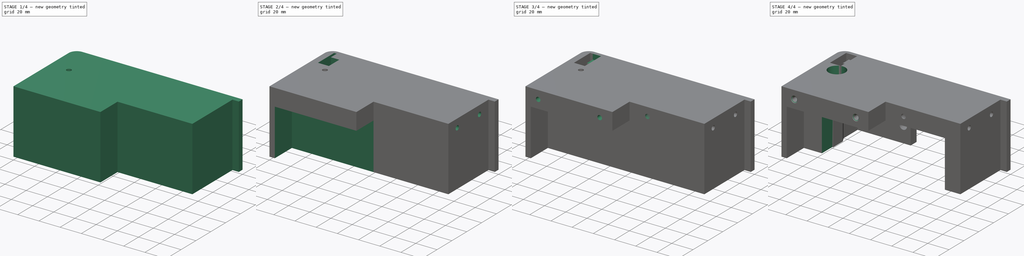
[diagram: build sequence overview — one tinted view per stage of 4, left to right]
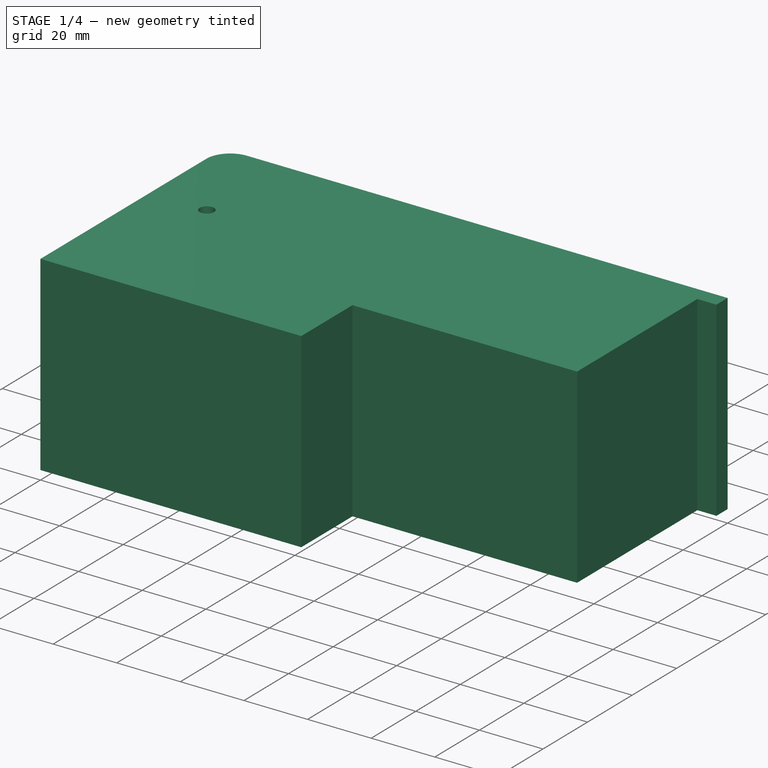
[diagram: stage 1 of 4 — iso view after this stage's code; geometry added in this stage tinted green]
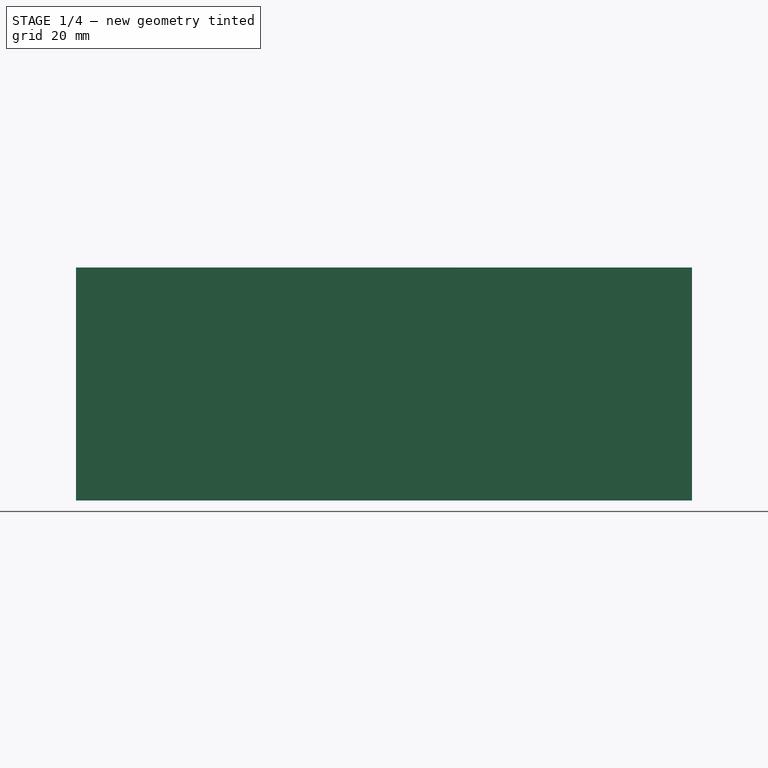
[diagram: stage 1 of 4 — front view after this stage's code; geometry added in this stage tinted green]
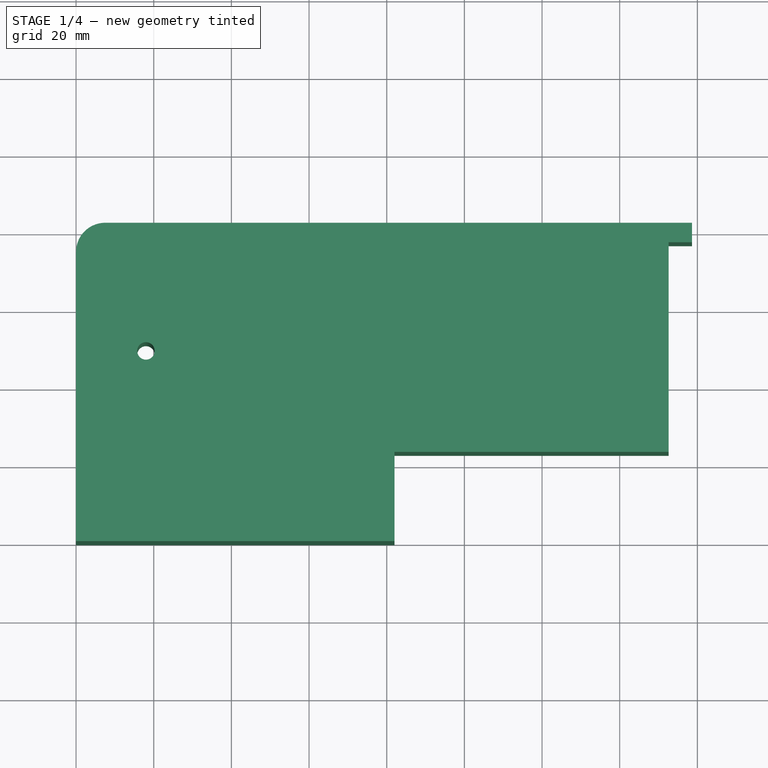
[diagram: stage 1 of 4 — top view after this stage's code; geometry added in this stage tinted green]
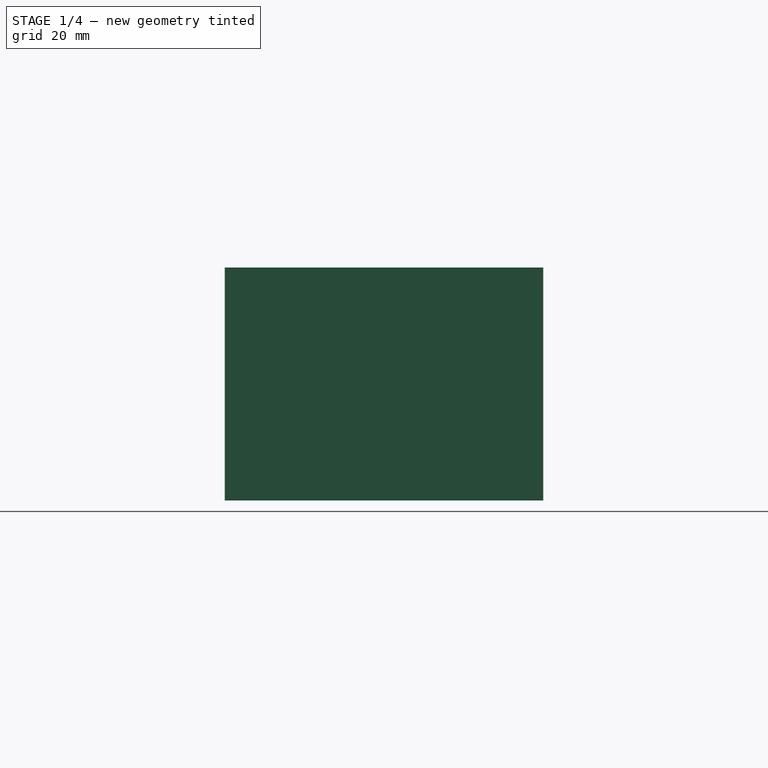
[diagram: stage 1 of 4 — right view after this stage's code; geometry added in this stage tinted green]
FCSTD DOCUMENT  (FreeCAD 0.21R33668 +7 (Git))
Label: speakerbox-L
License: All rights reserved
LicenseURL: http://en.wikipedia.org/wiki/All_rights_reserved
objects: Sketcher::SketchObject×14, PartDesign::Pocket×11, PartDesign::Plane×4, PartDesign::Pad×2, PartDesign::CoordinateSystem×1, PartDesign::Chamfer×1, PartDesign::Body×1, App::Part×1
note: 48 computed .brp shape members not serialized (recipe doc carries the construction recipe); baked Part::Feature solids carry a one-line shape summary decoded from their .brp
EXTERNAL_REF file=planB.FCStd obj=Spreadsheet

FEATURE [Sketcher::SketchObject] Sketch
  FullyConstrained = true
  MapMode = 5
  Support = -> [XY_Plane]
  expr: Constraints[12] = planB#<<data>>.central_h + planB#<<data>>.mungo_d + 2
  sketch-geometry (10):
    g0: LineSegment StartX=0 StartY=0 StartZ=0 EndX=82 EndY=0 EndZ=0
    g1: LineSegment StartX=158.6 StartY=82 StartZ=0 EndX=7.5 EndY=82 EndZ=0
    g2: LineSegment StartX=0 StartY=74.5 StartZ=0 EndX=0 EndY=0 EndZ=0
    g3: LineSegment StartX=82 StartY=0 StartZ=0 EndX=82 EndY=23 EndZ=0
    g4: LineSegment StartX=82 StartY=23 StartZ=0 EndX=152.6 EndY=23 EndZ=0
    g5: LineSegment StartX=152.6 StartY=23 StartZ=0 EndX=152.6 EndY=77 EndZ=0
    g6: LineSegment StartX=152.6 StartY=77 StartZ=0 EndX=158.6 EndY=77 EndZ=0
    g7: LineSegment StartX=158.6 StartY=77 StartZ=0 EndX=158.6 EndY=82 EndZ=0
    g8: ArcOfCircle CenterX=7.5 CenterY=74.5 CenterZ=0 NormalX=0 NormalY=0 NormalZ=1 AngleXU=0 Radius=7.5 StartAngle=1.5708 EndAngle=3.14159
    g9: GeomPoint X=0 Y=82 Z=0
  constraints (27):
    c: Coincident(g0,g3)
    c: Coincident(g7,g1)
    c: Coincident(g2,g0)
    c: Horizontal(g0)
    c: Horizontal(g1)
    c: Vertical(g2)
    c: Coincident(g0,g-1)
    c: Coincident(g3,g4)
    c: Vertical(g3)
    c: Coincident(g4,g5)
    c: Horizontal(g4)
    c: Distance(g3) = 23
    c: Distance(g0) = 82
    c: DistanceX(g4) = 152.6
    c: Coincident(g5,g6)
    c: Vertical(g5)
    c: Coincident(g6,g7)
    c: Vertical(g7)
    c: Horizontal(g6)
    c: Distance(g6) = 6
    c: Distance(g5) = 54
    c: Distance(g7) = 5
    c: PointOnObject(g9,g1)
    c: PointOnObject(g9,g2)
    c: Tangent(g1,g8) = -1.5708
    c: Tangent(g2,g8) = -1.5708
    c: Diameter(g8) = 15
FEATURE [PartDesign::Pad] Pad
  Direction = (0,0,1)
  Length = 60
  Length2 = 10
  Profile = -> Sketch
  ReferenceAxis = -> Sketch [N_Axis]
  Type = 0
  expr: Length = planB#<<data>>.speaker_w
FEATURE [PartDesign::Plane] DatumPlane
  AttachmentOffset = pos=(0,0,5) rot=(0,0,1;0rad)
  Length = 60
  MapMode = 2
  Placement = pos=(0,0,5) rot=(0,0,1;0rad)
  ResizeMode = 0
  Support = -> [XY_Plane]
  Width = 60
  expr: .AttachmentOffset.Base.z = planB#<<data>>.base_t
FEATURE [Sketcher::SketchObject] Sketch001
  FullyConstrained = false
  MapMode = 5
  Support = -> [XY_Plane001]
  expr: Constraints[10] = planB#<<data>>.base_t
  sketch-geometry (26):
    g0: LineSegment StartX=7.90621 StartY=137.395 StartZ=0 EndX=153.6 EndY=137.395 EndZ=0
    g1: LineSegment StartX=147.6 StartY=28 StartZ=0 EndX=77 EndY=28 EndZ=0
    g2: LineSegment StartX=77 StartY=28 StartZ=0 EndX=77 EndY=5 EndZ=0
    g3: LineSegment StartX=77 StartY=5 StartZ=0 EndX=22.8287 EndY=5 EndZ=0
    g4: LineSegment StartX=153.6 StartY=137.395 StartZ=0 EndX=153.6 EndY=92 EndZ=0
    g5: LineSegment StartX=153.6 StartY=92 StartZ=0 EndX=143.6 EndY=92 EndZ=0
    g6: LineSegment StartX=7.90621 StartY=92 StartZ=0 EndX=7.90621 EndY=137.395 EndZ=0
    g7: LineSegment StartX=20 StartY=92 StartZ=0 EndX=7.90621 EndY=92 EndZ=0
    g8: LineSegment StartX=22.8287 StartY=50 StartZ=0 EndX=20 EndY=55 EndZ=0
    g9: LineSegment StartX=147.6 StartY=82.6874 StartZ=0 EndX=147.6 EndY=28 EndZ=0
    g10: LineSegment StartX=143.6 StartY=92 StartZ=0 EndX=143.6 EndY=85 EndZ=0
    g11: LineSegment StartX=143.6 StartY=85 StartZ=0 EndX=147.6 EndY=82.6874 EndZ=0
    g12: LineSegment StartX=22.8287 StartY=5 StartZ=0 EndX=22.8287 EndY=28 EndZ=0
    g13: LineSegment StartX=22.8287 StartY=28 StartZ=0 EndX=22.8287 EndY=50 EndZ=0
    g14: LineSegment StartX=22.8287 StartY=28 StartZ=0 EndX=102.6 EndY=28 EndZ=0
    g15: LineSegment StartX=102.6 StartY=28 StartZ=0 EndX=107.6 EndY=28 EndZ=0
    g16: LineSegment StartX=107.6 StartY=28 StartZ=0 EndX=77 EndY=28 EndZ=0
    g17: LineSegment StartX=102.6 StartY=28 StartZ=0 EndX=102.6 EndY=92 EndZ=0
    g18: LineSegment StartX=102.6 StartY=92 StartZ=0 EndX=107.6 EndY=92 EndZ=0
    g19: LineSegment StartX=107.6 StartY=92 StartZ=0 EndX=107.6 EndY=28 EndZ=0
    g20: Circle CenterX=18 CenterY=49 CenterZ=0 NormalX=0 NormalY=0 NormalZ=1 AngleXU=0 Radius=3
    g21: LineSegment StartX=20 StartY=55 StartZ=0 EndX=20 EndY=74 EndZ=0
    g22: LineSegment StartX=20 StartY=74 StartZ=0 EndX=20 EndY=92 EndZ=0
    g23: LineSegment StartX=20 StartY=74 StartZ=0 EndX=70 EndY=74 EndZ=0
    g24: LineSegment StartX=70 StartY=74 StartZ=0 EndX=70 EndY=92 EndZ=0
    g25: LineSegment StartX=70 StartY=92 StartZ=0 EndX=20 EndY=92 EndZ=0
  constraints (70):
    c: Coincident(g6,g0)
    c: Horizontal(g0)
    c: Coincident(g0,g4)
    c: Coincident(g9,g1)
    c: Horizontal(g1)
    c: Coincident(g1,g2)
    c: Vertical(g2)
    c: Coincident(g2,g3)
    c: Coincident(g3,g12)
    c: Horizontal(g3)
    c: DistanceY(g12) = 5
    c: DistanceX(g2) = 77
    c: DistanceX(g9) = 147.6
    c: Coincident(g4,g5)
    c: Vertical(g4)
    c: Coincident(g5,g10)
    c: Horizontal(g5)
    c: Distance(g2) = 23
    c: Coincident(g7,g6)
    c: Vertical(g6)
    c: Coincident(g22,g7)
    c: Coincident(g13,g8)
    c: Horizontal(g7)
    c: PointOnObject(g7,g5)
    c: Distance(g13,g7) = 42
    c: Coincident(g8,g21)
    c: Coincident(g11,g9)
    c: Vertical(g9)
    c: Distance(g11,g4) = 6
    c: Distance(g1,g5) = 64
    c: Distance(g5) = 10
    c: Coincident(g10,g11)
    c: Vertical(g10)
    c: Distance(g10) = 7
    c: Coincident(g12,g13)
    c: Vertical(g12)
    c: Vertical(g13)
    c: Coincident(g14,g12)
    c: Coincident(g16,g1)
    c: Coincident(g14,g15)
    c: Horizontal(g14)
    c: Coincident(g15,g16)
    c: Horizontal(g15)
    c: Horizontal(g16)
    c: Coincident(g14,g17)
    c: Vertical(g17)
    c: Coincident(g17,g18)
    c: Horizontal(g18)
    c: Coincident(g18,g19)
    c: Coincident(g19,g15)
    c: Vertical(g19)
    c: PointOnObject(g17,g7)
    c: Distance(g18) = 5
    c: Distance(g18,g9) = 40
    c: DistanceX(g20) = 18
    c: DistanceY(g20) = 49
    c: Diameter(g20) = 6
    c: Coincident(g21,g22)
    c: Distance(g21,g22) = 37
    c: Vertical(g21)
    c: Vertical(g22)
    c: Coincident(g21,g23)
    c: Horizontal(g23)
    c: Coincident(g23,g24)
    c: Vertical(g24)
    c: Coincident(g24,g25)
    c: Coincident(g25,g7)
    c: Horizontal(g25)
    c: DistanceY(g24,g24) = 18
    c: DistanceX(g24) = 70
FEATURE [PartDesign::Pocket] Pocket  label="hollow out"
  BaseFeature = -> Pad
  Direction = (0,0,-1)
  Length = 110
  Length2 = 5
  Midplane = true
  Profile = -> Sketch001
  ReferenceAxis = -> Sketch001 [N_Axis]
  Type = 0
  expr: Length = 2 * (planB#<<data>>.speaker_w - planB#<<data>>.base_t)
FEATURE [PartDesign::CoordinateSystem] LCS_0
  AttacherType = Attacher::AttachEngine3D
  MapMode = 2
  Support = -> [X_Axis001]
FEATURE [PartDesign::Plane] DatumPlane001
  AttachmentOffset = pos=(0,0,60) rot=(0,0,1;0rad)
  Length = 60
  MapMode = 5
  Placement = pos=(0,0,60) rot=(0,0,1;0rad)
  ResizeMode = 0
  Support = -> [XY_Plane]
  Width = 60
  expr: .AttachmentOffset.Base.z = planB#<<data>>.speaker_w
FEATURE [Sketcher::SketchObject] Sketch002
  FullyConstrained = false
  MapMode = 5
  Support = -> [XY_Plane001]
  expr: Constraints[0] = planB#<<data>>.clearance_m4
  expr: Constraints[16] = planB#<<data>>.L_thickness + 0.4 * 2
  expr: Constraints[17] = planB#<<data>>.L_size + 0.4 * 2
  expr: Constraints[18] = planB#<<data>>.L_size - planB#<<data>>.L_thickness
  sketch-geometry (11):
    g0: Circle CenterX=18 CenterY=49 CenterZ=0 NormalX=0 NormalY=0 NormalZ=1 AngleXU=0 Radius=2.25
    g1: LineSegment StartX=6 StartY=78.6 StartZ=0 EndX=6 EndY=56.7 EndZ=0
    g2: LineSegment StartX=6 StartY=56.7 StartZ=0 EndX=16.3 EndY=56.7 EndZ=0
    g3: LineSegment StartX=16.3 StartY=56.7 StartZ=0 EndX=16.3 EndY=70.7 EndZ=0
    g4: LineSegment StartX=16.3 StartY=70.7 StartZ=0 EndX=8.4 EndY=70.7 EndZ=0
    g5: LineSegment StartX=8.4 StartY=70.7 StartZ=0 EndX=8.4 EndY=78.6 EndZ=0
    g6: LineSegment StartX=8.4 StartY=78.6 StartZ=0 EndX=6 EndY=78.6 EndZ=0
    g7: ArcOfCircle CenterX=117.436 CenterY=40.4082 CenterZ=0 NormalX=0 NormalY=0 NormalZ=1 AngleXU=0 Radius=7.5 StartAngle=1.5708 EndAngle=4.71239
    g8: ArcOfCircle CenterX=137.436 CenterY=40.4082 CenterZ=0 NormalX=0 NormalY=0 NormalZ=1 AngleXU=0 Radius=7.5 StartAngle=4.71239 EndAngle=7.85398
    g9: LineSegment StartX=117.436 StartY=32.9082 StartZ=0 EndX=137.436 EndY=32.9082 EndZ=0
    g10: LineSegment StartX=137.436 StartY=47.9082 StartZ=0 EndX=117.436 EndY=47.9082 EndZ=0
  constraints (29):
    c: Diameter(g0) = 4.5
    c: Vertical(g1)
    c: Coincident(g1,g2)
    c: Horizontal(g2)
    c: Coincident(g2,g3)
    c: Vertical(g3)
    c: Coincident(g3,g4)
    c: Horizontal(g4)
    c: Coincident(g4,g5)
    c: Vertical(g5)
    c: Coincident(g5,g6)
    c: Coincident(g6,g1)
    c: Horizontal(g6)
    c: DistanceX(g0) = 18
    c: DistanceY(g0) = 49
    c: DistanceX(g1) = 6
    c: Distance(g6) = 2.4
    c: Distance(g2) = 10.3
    c: Distance(g5) = 7.9
    c: Distance(g3) = 14
    c: DistanceY(g1) = 78.6
    c: Tangent(g7,g9) = -1.5708
    c: Tangent(g9,g8) = -1.5708
    c: Tangent(g8,g10) = -1.5708
    c: Tangent(g10,g7) = -1.5708
    c: Equal(g7,g8)
    c: Horizontal(g9)
    c: Distance(g9) = 20
    c: Distance(g7,g10) = 15
FEATURE [Sketcher::SketchObject] Sketch003
  FullyConstrained = false
  MapMode = 5
  Support = -> [XY_Plane001]
  sketch-geometry (4):
    g0: LineSegment StartX=5 StartY=0 StartZ=0 EndX=82.9999 EndY=0 EndZ=0
    g1: LineSegment StartX=82.9999 StartY=0 StartZ=0 EndX=82.9999 EndY=23 EndZ=0
    g2: LineSegment StartX=82.9999 StartY=23 StartZ=0 EndX=5 EndY=23 EndZ=0
    g3: LineSegment StartX=5 StartY=23 StartZ=0 EndX=5 EndY=0 EndZ=0
  constraints (11):
    c: Coincident(g0,g1)
    c: Coincident(g1,g2)
    c: Coincident(g2,g3)
    c: Coincident(g3,g0)
    c: Horizontal(g0)
    c: Horizontal(g2)
    c: Vertical(g1)
    c: Vertical(g3)
    c: Distance(g1) = 23
    c: PointOnObject(g0,g-1)
    c: DistanceX(g0) = 5
FEATURE [Sketcher::SketchObject] Sketch004
  FullyConstrained = true
  MapMode = 5
  Placement = pos=(0,0,0) rot=(1,0,0;1.5708rad)
  Support = -> [XZ_Plane]
  expr: Constraints[3] = planB#<<data>>.speaker_w - 8
  expr: Constraints[5] = planB#<<data>>.insert_diameter
  sketch-geometry (4):
    g0: Circle CenterX=12 CenterY=52 CenterZ=0 NormalX=0 NormalY=0 NormalZ=1 AngleXU=0 Radius=2.15
    g1: Circle CenterX=70 CenterY=52 CenterZ=0 NormalX=0 NormalY=0 NormalZ=1 AngleXU=0 Radius=2.15
    g2: LineSegment StartX=12 StartY=52 StartZ=0 EndX=70 EndY=52 EndZ=0
    g3: Circle CenterX=99 CenterY=52 CenterZ=0 NormalX=0 NormalY=0 NormalZ=1 AngleXU=0 Radius=2.15
  constraints (11):
    c: Coincident(g2,g0)
    c: Coincident(g2,g1)
    c: Horizontal(g2)
    c: DistanceY(g-1,g0) = 52
    c: Equal(g0,g1)
    c: Diameter(g1) = 4.3
    c: DistanceX(g0) = 12
    c: DistanceX(g1) = 70
    c: PointOnObject(g3,g2)
    c: Equal(g1,g3)
    c: DistanceX(g3) = 99
FEATURE [PartDesign::Plane] DatumPlane002
  AttachmentOffset = pos=(0,0,138) rot=(0,0,1;0rad)
  Length = 60
  MapMode = 5
  Placement = pos=(138,-3.06e-14,3.06e-14) rot=(0.57735,0.57735,0.57735;2.0944rad)
  ResizeMode = 0
  Support = -> [YZ_Plane]
  Width = 60
FEATURE [Sketcher::SketchObject] Sketch005
  FullyConstrained = true
  MapMode = 5
  Placement = pos=(138,-3.06e-14,3.06e-14) rot=(0.57735,0.57735,0.57735;2.0944rad)
  Support = -> [DatumPlane002]
  expr: Constraints[1] = planB#<<data>>.insert_diameter
  expr: Constraints[5] = planB#<<data>>.speaker_w - 8
  sketch-geometry (3):
    g0: Circle CenterX=35 CenterY=52 CenterZ=0 NormalX=0 NormalY=0 NormalZ=1 AngleXU=0 Radius=2.15
    g1: Circle CenterX=65 CenterY=52 CenterZ=0 NormalX=0 NormalY=0 NormalZ=1 AngleXU=0 Radius=2.15
    g2: LineSegment StartX=35 StartY=52 StartZ=0 EndX=65 EndY=52 EndZ=0
  constraints (8):
    c: Equal(g1,g0)
    c: Diameter(g1) = 4.3
    c: Coincident(g2,g0)
    c: Coincident(g2,g1)
    c: Horizontal(g2)
    c: DistanceY(g-1,g0) = 52
    c: DistanceX(g0) = 35
    c: DistanceX(g1) = 65
FEATURE [Sketcher::SketchObject] Sketch006
  FullyConstrained = true
  MapMode = 5
  Placement = pos=(138,-3.06e-14,3.06e-14) rot=(0.57735,0.57735,0.57735;2.0944rad)
  Support = -> [DatumPlane002]
  expr: Constraints[5] = planB#<<data>>.speaker_w - 8
  sketch-geometry (3):
    g0: Circle CenterX=35 CenterY=52 CenterZ=0 NormalX=0 NormalY=0 NormalZ=1 AngleXU=0 Radius=4
    g1: Circle CenterX=65 CenterY=52 CenterZ=0 NormalX=0 NormalY=0 NormalZ=1 AngleXU=0 Radius=4
    g2: LineSegment StartX=35 StartY=52 StartZ=0 EndX=65 EndY=52 EndZ=0
  constraints (8):
    c: Equal(g1,g0)
    c: Diameter(g1) = 8
    c: Coincident(g2,g0)
    c: Coincident(g2,g1)
    c: Horizontal(g2)
    c: DistanceY(g-1,g0) = 52
    c: DistanceX(g0) = 35
    c: DistanceX(g1) = 65
FEATURE [Sketcher::SketchObject] Sketch009
  FullyConstrained = true
  MapMode = 5
  Placement = pos=(0,0,60) rot=(0,0,1;0rad)
  Support = -> [DatumPlane001]
  expr: Constraints[13] = planB#<<data>>.L_thickness + 0.4 * 2
  expr: Constraints[14] = planB#<<data>>.L_size + 0.4 * 2
  expr: Constraints[15] = planB#<<data>>.L_size - planB#<<data>>.L_thickness
  sketch-geometry (6):
    g0: LineSegment StartX=6 StartY=78.6 StartZ=0 EndX=6 EndY=56.7 EndZ=0
    g1: LineSegment StartX=6 StartY=56.7 StartZ=0 EndX=16.3 EndY=56.7 EndZ=0
    g2: LineSegment StartX=16.3 StartY=56.7 StartZ=0 EndX=16.3 EndY=70.7 EndZ=0
    g3: LineSegment StartX=16.3 StartY=70.7 StartZ=0 EndX=8.4 EndY=70.7 EndZ=0
    g4: LineSegment StartX=8.4 StartY=70.7 StartZ=0 EndX=8.4 EndY=78.6 EndZ=0
    g5: LineSegment StartX=8.4 StartY=78.6 StartZ=0 EndX=6 EndY=78.6 EndZ=0
  constraints (18):
    c: Vertical(g0)
    c: Coincident(g0,g1)
    c: Horizontal(g1)
    c: Coincident(g1,g2)
    c: Vertical(g2)
    c: Coincident(g2,g3)
    c: Horizontal(g3)
    c: Coincident(g3,g4)
    c: Vertical(g4)
    c: Coincident(g4,g5)
    c: Coincident(g5,g0)
    c: Horizontal(g5)
    c: DistanceX(g0) = 6
    c: Distance(g5) = 2.4
    c: Distance(g1) = 10.3
    c: Distance(g4) = 7.9
    c: Distance(g2) = 14
    c: DistanceY(g0) = 78.6
FEATURE [Sketcher::SketchObject] Sketch010
  FullyConstrained = true
  MapMode = 5
  Placement = pos=(0,0,60) rot=(0,0,1;0rad)
  Support = -> [DatumPlane001]
  sketch-geometry (4):
    g0: LineSegment StartX=7 StartY=78.6 StartZ=0 EndX=16.3 EndY=78.6 EndZ=0
    g1: LineSegment StartX=16.3 StartY=78.6 StartZ=0 EndX=16.3 EndY=57.7 EndZ=0
    g2: LineSegment StartX=16.3 StartY=57.7 StartZ=0 EndX=7 EndY=57.7 EndZ=0
    g3: LineSegment StartX=7 StartY=57.7 StartZ=0 EndX=7 EndY=78.6 EndZ=0
  constraints (12):
    c: Coincident(g0,g1)
    c: Coincident(g1,g2)
    c: Coincident(g2,g3)
    c: Coincident(g3,g0)
    c: Horizontal(g0)
    c: Horizontal(g2)
    c: Vertical(g1)
    c: Vertical(g3)
    c: DistanceX(g0) = 7
    c: DistanceY(g0) = 78.6
    c: DistanceX(g1) = 16.3
    c: DistanceY(g1) = 57.7
FEATURE [PartDesign::Plane] DatumPlane003
  AttachmentOffset = pos=(0,0,100) rot=(0,0,1;0rad)
  Length = 60
  MapMode = 5
  Placement = pos=(0,100,2.22e-14) rot=(0,0.707107,0.707107;3.14159rad)
  ResizeMode = 0
  Support = -> [XZ_Plane]
  Width = 60
FEATURE [Sketcher::SketchObject] Sketch011
  FullyConstrained = true
  MapMode = 5
  Placement = pos=(0,100,2.22e-14) rot=(0,0.707107,0.707107;3.14159rad)
  Support = -> [DatumPlane003]
  sketch-geometry (10):
    g0: Circle CenterX=-152.6 CenterY=50 CenterZ=0 NormalX=0 NormalY=0 NormalZ=1 AngleXU=0 Radius=3.2
    g1: LineSegment StartX=-152.6 StartY=50 StartZ=0 EndX=-14 EndY=50 EndZ=0
    g2: LineSegment StartX=-14 StartY=50 StartZ=0 EndX=-14 EndY=10 EndZ=0
    g3: LineSegment StartX=-14 StartY=10 StartZ=0 EndX=-152.6 EndY=10 EndZ=0
    g4: LineSegment StartX=-152.6 StartY=10 StartZ=0 EndX=-152.6 EndY=50 EndZ=0
    g5: Circle CenterX=-152.6 CenterY=10 CenterZ=0 NormalX=0 NormalY=0 NormalZ=1 AngleXU=0 Radius=3.2
    g6: Circle CenterX=-14 CenterY=10 CenterZ=0 NormalX=0 NormalY=0 NormalZ=1 AngleXU=0 Radius=3.2
    g7: Circle CenterX=-14 CenterY=50 CenterZ=0 NormalX=0 NormalY=0 NormalZ=1 AngleXU=0 Radius=3.2
    g8: Circle CenterX=-35 CenterY=27.5 CenterZ=0 NormalX=0 NormalY=0 NormalZ=1 AngleXU=0 Radius=4.5
    g9: Circle CenterX=-63 CenterY=15 CenterZ=0 NormalX=0 NormalY=0 NormalZ=1 AngleXU=0 Radius=3.5
  constraints (26):
    c: Coincident(g1,g2)
    c: Coincident(g2,g3)
    c: Coincident(g3,g4)
    c: Coincident(g4,g1)
    c: Horizontal(g1)
    c: Horizontal(g3)
    c: Vertical(g2)
    c: Vertical(g4)
    c: Coincident(g1,g0)
    c: Coincident(g5,g3)
    c: Coincident(g6,g2)
    c: Coincident(g7,g1)
    c: Equal(g0,g7)
    c: Equal(g7,g6)
    c: Equal(g6,g5)
    c: Diameter(g6) = 6.4
    c: DistanceY(g5) = 10
    c: DistanceX(g6) = -14
    c: DistanceY(g4,g4) = 40
    c: DistanceX(g5) = -152.6
    c: DistanceX(g8) = -35
    c: Diameter(g8) = 9
    c: DistanceY(g8) = 27.5
    c: Diameter(g9) = 7
    c: DistanceY(g9) = 15
    c: DistanceX(g9) = -63
FEATURE [Sketcher::SketchObject] Sketch012
  FullyConstrained = true
  MapMode = 5
  Placement = pos=(0,0,60) rot=(0,0,1;0rad)
  Support = -> [DatumPlane001]
  sketch-geometry (1):
    g0: Circle CenterX=18 CenterY=49 CenterZ=0 NormalX=0 NormalY=0 NormalZ=1 AngleXU=0 Radius=8
  constraints (3):
    c: Diameter(g0) = 16
    c: DistanceX(g0) = 18
    c: DistanceY(g0) = 49
FEATURE [Sketcher::SketchObject] Sketch013
  FullyConstrained = true
  MapMode = 5
  Placement = pos=(0,0,60) rot=(0,0,1;0rad)
  Support = -> [DatumPlane001]
  sketch-geometry (1):
    g0: Circle CenterX=18 CenterY=49 CenterZ=0 NormalX=0 NormalY=0 NormalZ=1 AngleXU=0 Radius=12
  constraints (3):
    c: DistanceX(g0) = 18
    c: DistanceY(g0) = 49
    c: Diameter(g0) = 24
FEATURE [PartDesign::Pad] Pad001
  BaseFeature = -> Pocket
  Direction = (0,0,1)
  Length = 16
  Length2 = 10
  Profile = -> Sketch013
  ReferenceAxis = -> Sketch013 [N_Axis]
  Reversed = true
  Type = 0
FEATURE [PartDesign::Pocket] Pocket001  label="threaded rod, power outlet"
  BaseFeature = -> Pad001
  Direction = (0,0,-1)
  Length = 30
  Length2 = 5
  Profile = -> Sketch002
  ReferenceAxis = -> Sketch002 [N_Axis]
  Reversed = true
  Type = 1
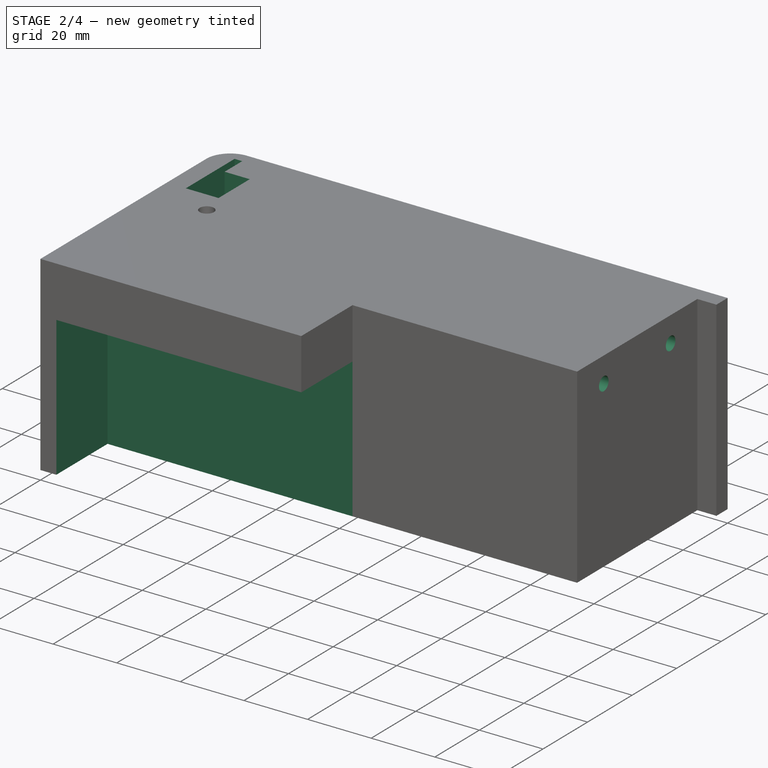
[diagram: stage 2 of 4 — iso view after this stage's code; geometry added in this stage tinted green]
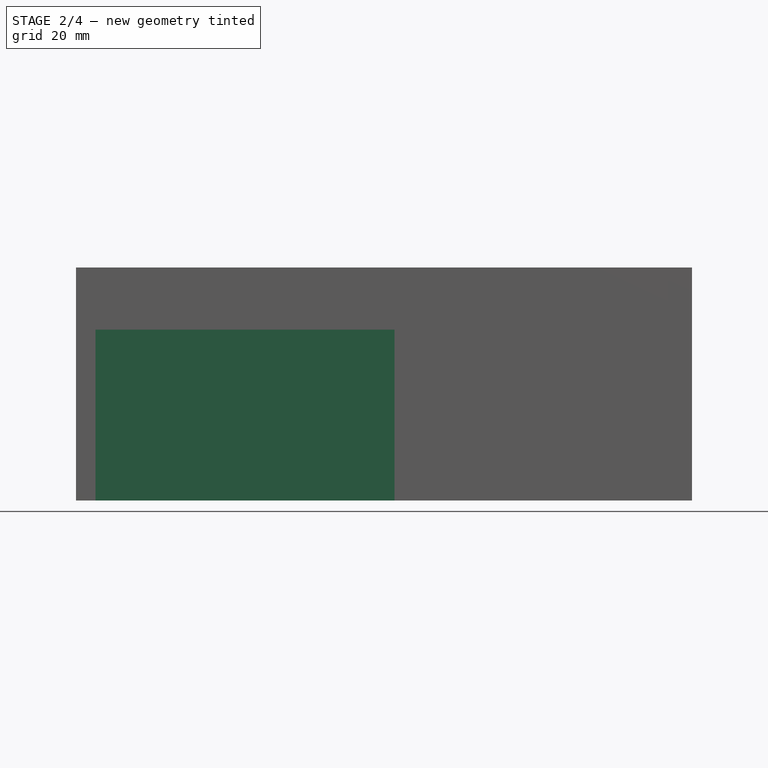
[diagram: stage 2 of 4 — front view after this stage's code; geometry added in this stage tinted green]
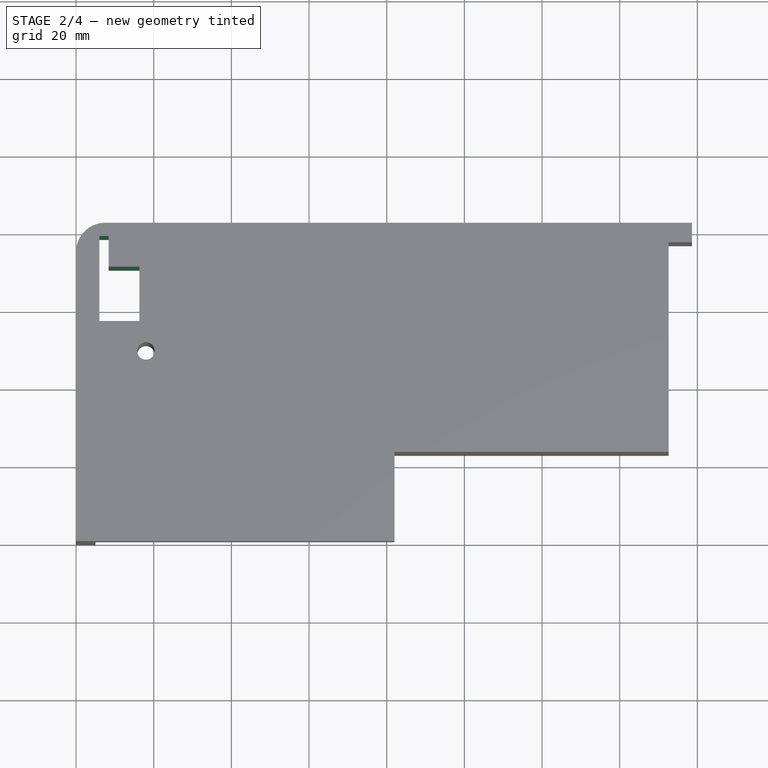
[diagram: stage 2 of 4 — top view after this stage's code; geometry added in this stage tinted green]
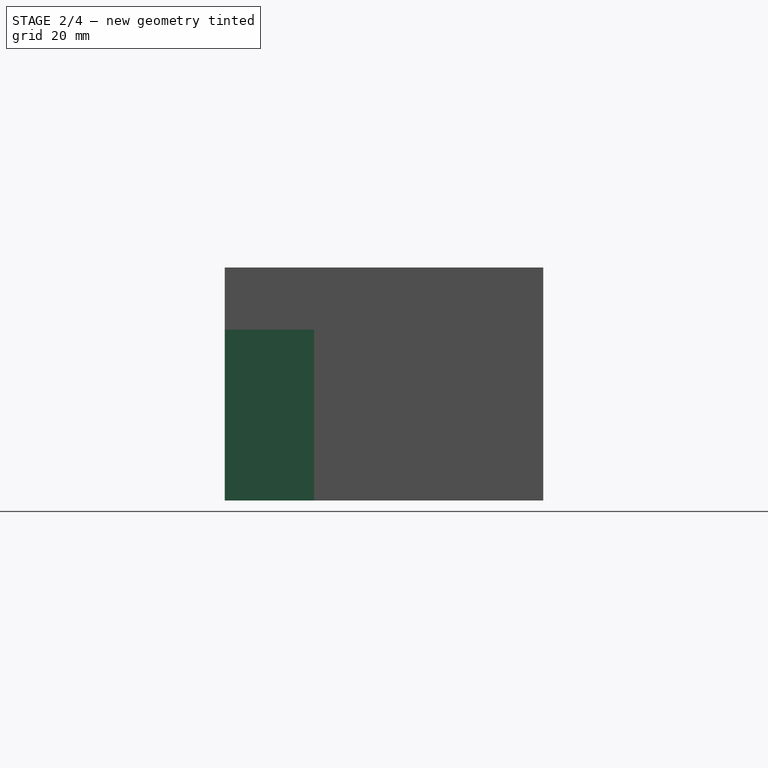
[diagram: stage 2 of 4 — right view after this stage's code; geometry added in this stage tinted green]
FEATURE [PartDesign::Pocket] Pocket008  label="L hole"
  BaseFeature = -> Pocket001
  Direction = (0,0,-1)
  Length = 156
  Length2 = 5
  Midplane = true
  Profile = -> Sketch009
  ReferenceAxis = -> Sketch009 [N_Axis]
  Type = 1
FEATURE [PartDesign::Pocket] Pocket002  label="hollow for psu"
  BaseFeature = -> Pocket008
  Direction = (0,0,-1)
  Length = 44
  Length2 = 5
  Profile = -> Sketch003
  ReferenceAxis = -> Sketch003 [N_Axis]
  Reversed = true
  Type = 0
  expr: Length = planB#<<data>>.speaker_w - 16
FEATURE [PartDesign::Pocket] Pocket004  label="side screwholes"
  BaseFeature = -> Pocket002
  Direction = (-1,1e-16,-1e-16)
  Length = 9
  Length2 = 5
  Profile = -> Sketch005
  ReferenceAxis = -> Sketch005 [N_Axis]
  Reversed = true
  Type = 1
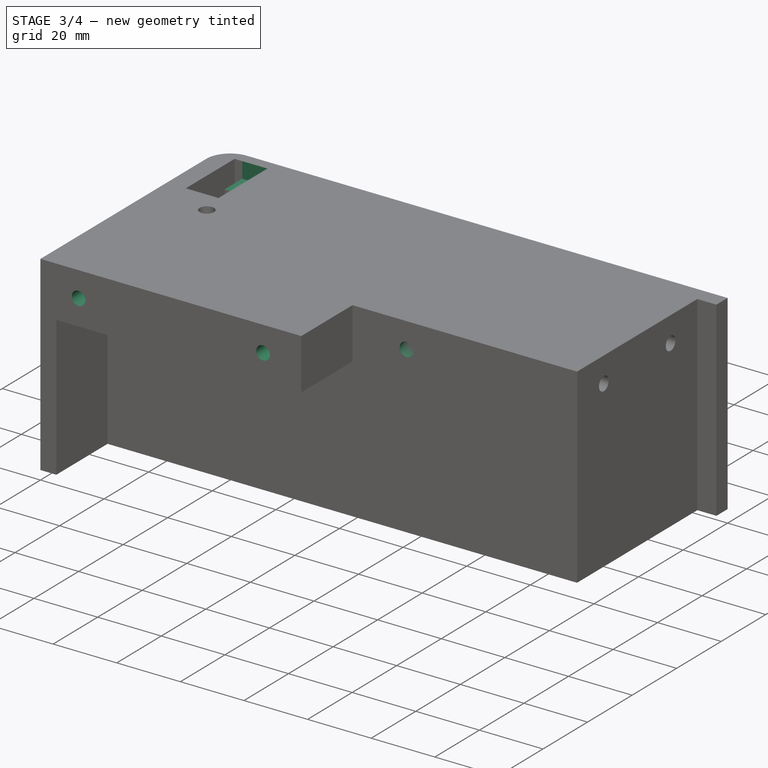
[diagram: stage 3 of 4 — iso view after this stage's code; geometry added in this stage tinted green]
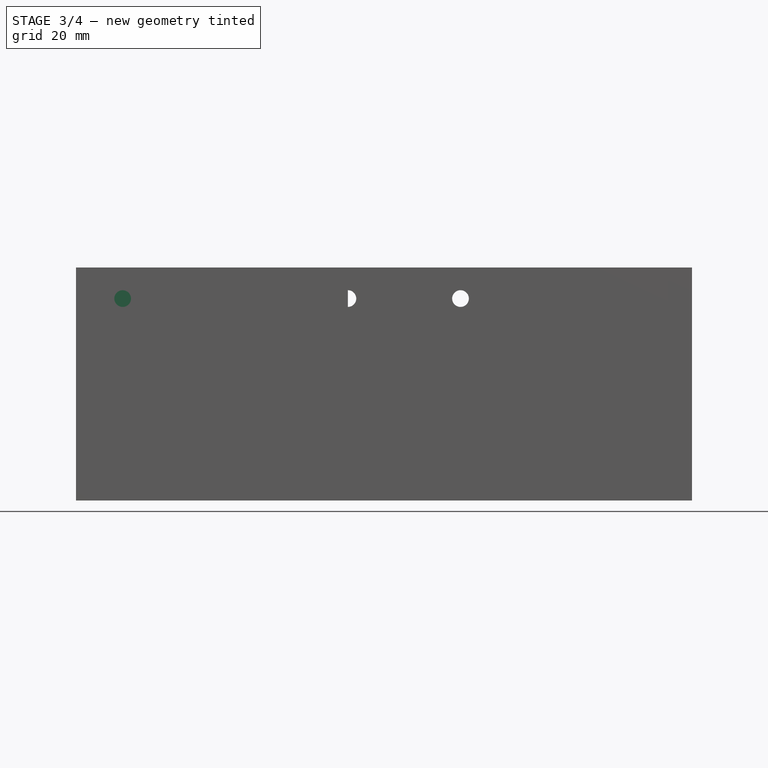
[diagram: stage 3 of 4 — front view after this stage's code; geometry added in this stage tinted green]
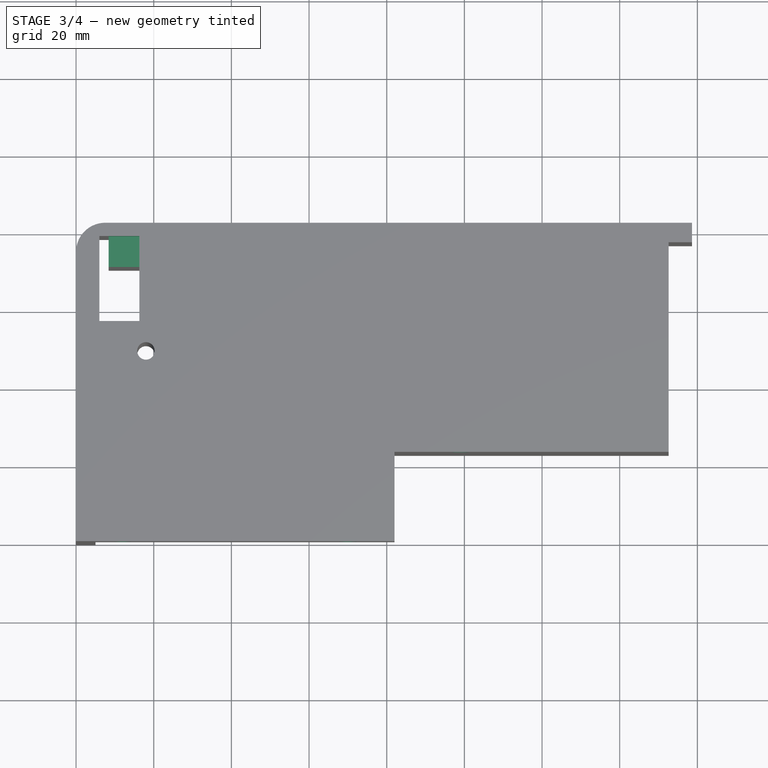
[diagram: stage 3 of 4 — top view after this stage's code; geometry added in this stage tinted green]
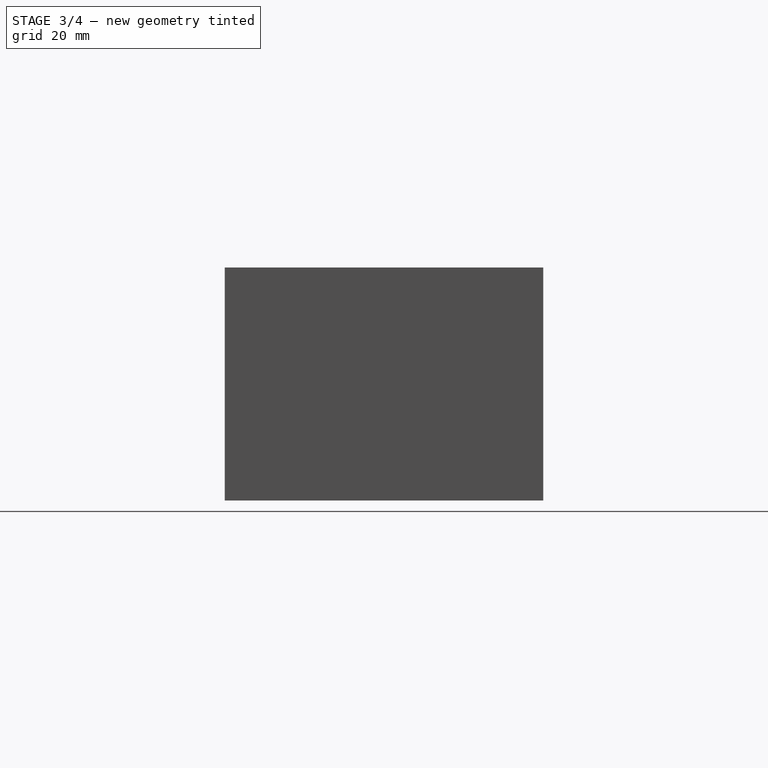
[diagram: stage 3 of 4 — right view after this stage's code; geometry added in this stage tinted green]
FEATURE [PartDesign::Pocket] Pocket009
  BaseFeature = -> Pocket004
  Direction = (0,0,-1)
  Length = 5
  Length2 = 5
  Profile = -> Sketch010
  ReferenceAxis = -> Sketch010 [N_Axis]
  Type = 0
FEATURE [PartDesign::Pocket] Pocket010  label="volume knob hole"
  BaseFeature = -> Pocket009
  Direction = (0,-1,-2e-16)
  Length = 32
  Length2 = 5
  Profile = -> Sketch011
  ReferenceAxis = -> Sketch011 [N_Axis]
  Type = 0
FEATURE [PartDesign::Pocket] Pocket003  label="bottom screwholes"
  BaseFeature = -> Pocket010
  Direction = (0,1,2e-16)
  Length = 34
  Length2 = 5
  Profile = -> Sketch004
  ReferenceAxis = -> Sketch004 [N_Axis]
  Type = 0
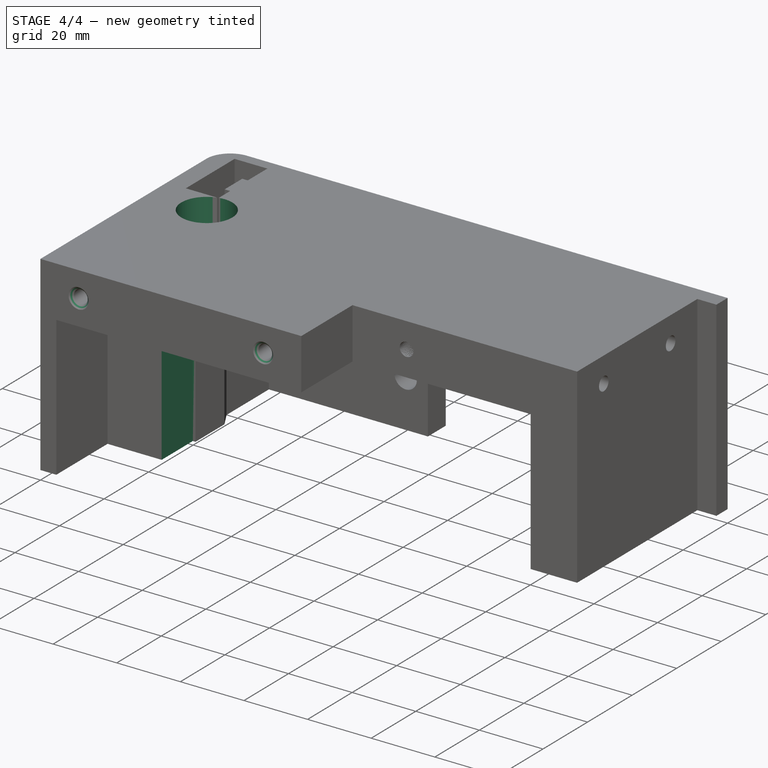
[diagram: stage 4 of 4 — iso view after this stage's code; geometry added in this stage tinted green]
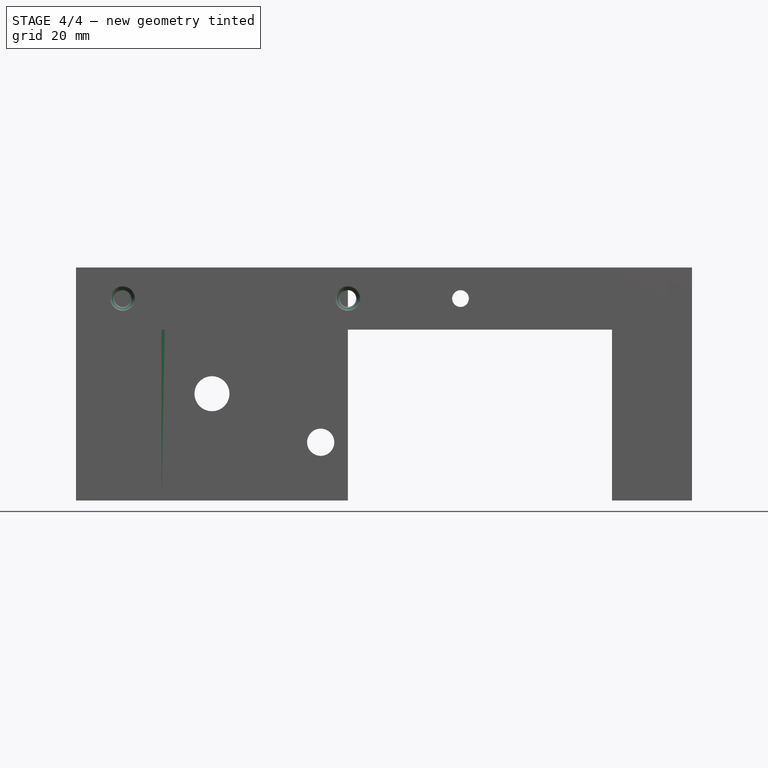
[diagram: stage 4 of 4 — front view after this stage's code; geometry added in this stage tinted green]
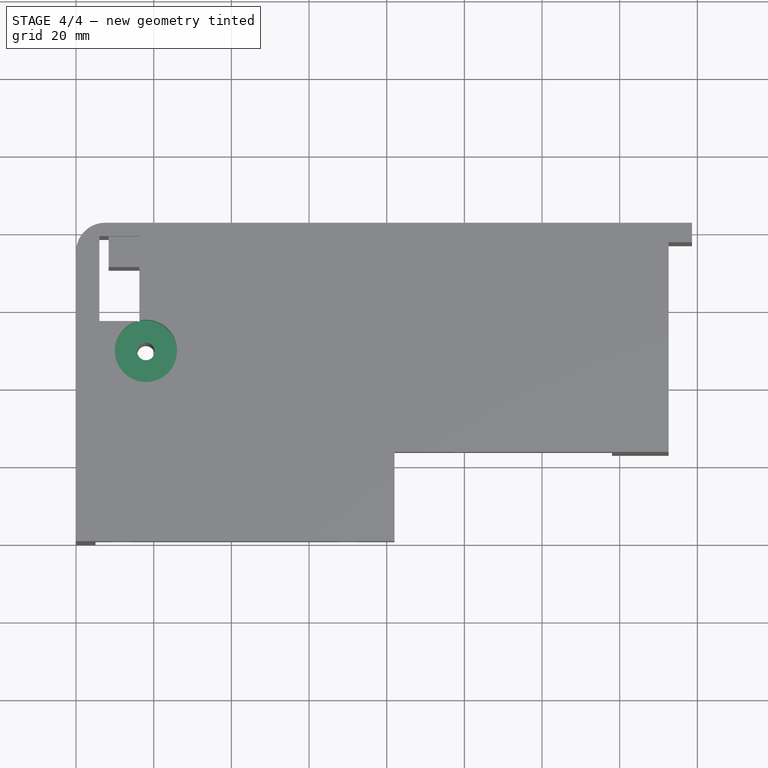
[diagram: stage 4 of 4 — top view after this stage's code; geometry added in this stage tinted green]
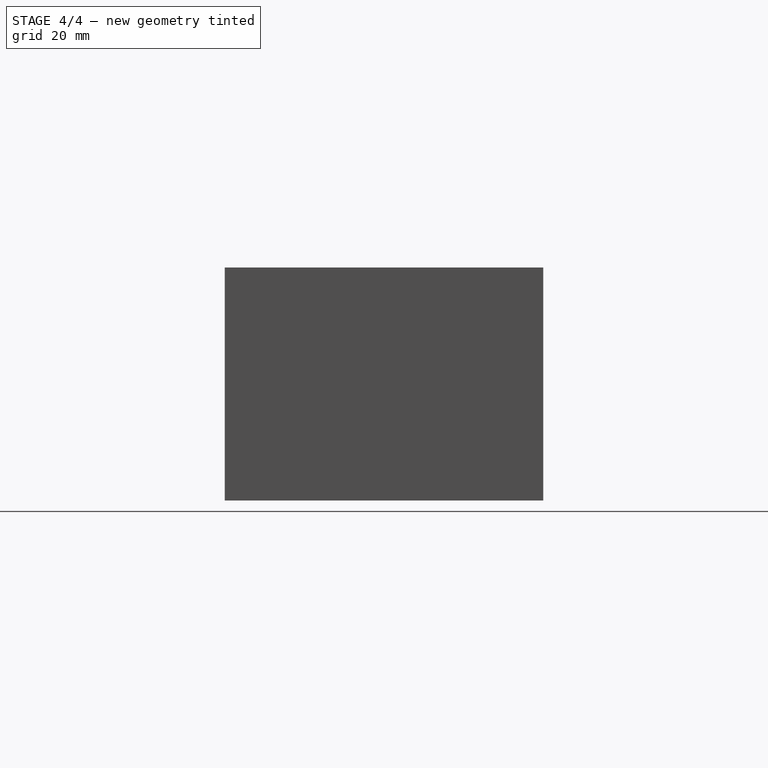
[diagram: stage 4 of 4 — right view after this stage's code; geometry added in this stage tinted green]
FEATURE [PartDesign::Pocket] Pocket011
  BaseFeature = -> Pocket003
  Direction = (0,0,-1)
  Length = 16
  Length2 = 5
  Midplane = true
  Profile = -> Sketch012
  ReferenceAxis = -> Sketch012 [N_Axis]
  Type = 0
FEATURE [PartDesign::Chamfer] Chamfer
  Angle = 45
  Base = -> Pocket011 [Edge7,Edge8]
  BaseFeature = -> Pocket011
  ChamferType = 0
  FlipDirection = false
  Size = 1
  Size2 = 1
  SupportTransform = false
  UseAllEdges = false
FEATURE [Sketcher::SketchObject] Sketch014
  FullyConstrained = false
  MapMode = 5
  Placement = pos=(0,0,0) rot=(1,0,0;1.5708rad)
  Support = -> [XZ_Plane]
  sketch-geometry (4):
    g0: LineSegment StartX=22 StartY=44 StartZ=0 EndX=138 EndY=44 EndZ=0
    g1: LineSegment StartX=138 StartY=44 StartZ=0 EndX=138 EndY=-30.3457 EndZ=0
    g2: LineSegment StartX=138 StartY=-30.3457 StartZ=0 EndX=22 EndY=-30.3457 EndZ=0
    g3: LineSegment StartX=22 StartY=-30.3457 StartZ=0 EndX=22 EndY=44 EndZ=0
  constraints (11):
    c: Coincident(g0,g1)
    c: Coincident(g1,g2)
    c: Coincident(g2,g3)
    c: Coincident(g3,g0)
    c: Horizontal(g0)
    c: Horizontal(g2)
    c: Vertical(g1)
    c: Vertical(g3)
    c: DistanceY(g0) = 44
    c: DistanceX(g0) = 22
    c: DistanceX(g0) = 138
FEATURE [PartDesign::Pocket] Pocket012
  BaseFeature = -> Chamfer
  Direction = (0,1,2e-16)
  Length = 37
  Length2 = 5
  Profile = -> Sketch014
  ReferenceAxis = -> Sketch014 [N_Axis]
  Type = 0
FEATURE [Sketcher::SketchObject] Sketch015
  FullyConstrained = true
  MapMode = 5
  Placement = pos=(0,100,2.22e-14) rot=(0,0.707107,0.707107;3.14159rad)
  Support = -> [DatumPlane003]
  sketch-geometry (1):
    g0: Circle CenterX=-35 CenterY=27.6 CenterZ=0 NormalX=0 NormalY=0 NormalZ=1 AngleXU=0 Radius=12.5
  constraints (3):
    c: DistanceX(g0) = -35
    c: DistanceY(g0) = 27.6
    c: Diameter(g0) = 25
FEATURE [PartDesign::Pocket] Pocket013
  BaseFeature = -> Pocket012
  Direction = (0,-1,-2e-16)
  Length = 22
  Length2 = 5
  Profile = -> Sketch015
  ReferenceAxis = -> Sketch015 [N_Axis]
  Type = 0
FEATURE [PartDesign::Body] Body
  Group = -> [Sketch,Pad,DatumPlane,Sketch001,Pocket,DatumPlane001,Pad001,Sketch002,Pocket001,Pocket008,Sketch003,Pocket002,Sketch004,DatumPlane002,Sketch005,Pocket004,Sketch006,Sketch009,Sketch010,Pocket009,DatumPlane003,Sketch011,Pocket010,Pocket003,Sketch012,Pocket011,Sketch013,Chamfer,Sketch014,Pocket012,Sketch015,Pocket013]
  Origin = -> Origin
  Tip = -> Pocket013
FEATURE [App::Part] speakerbox  label="speakerbox-L"
  Group = -> [LCS_0,Body]
  Origin = -> Origin001
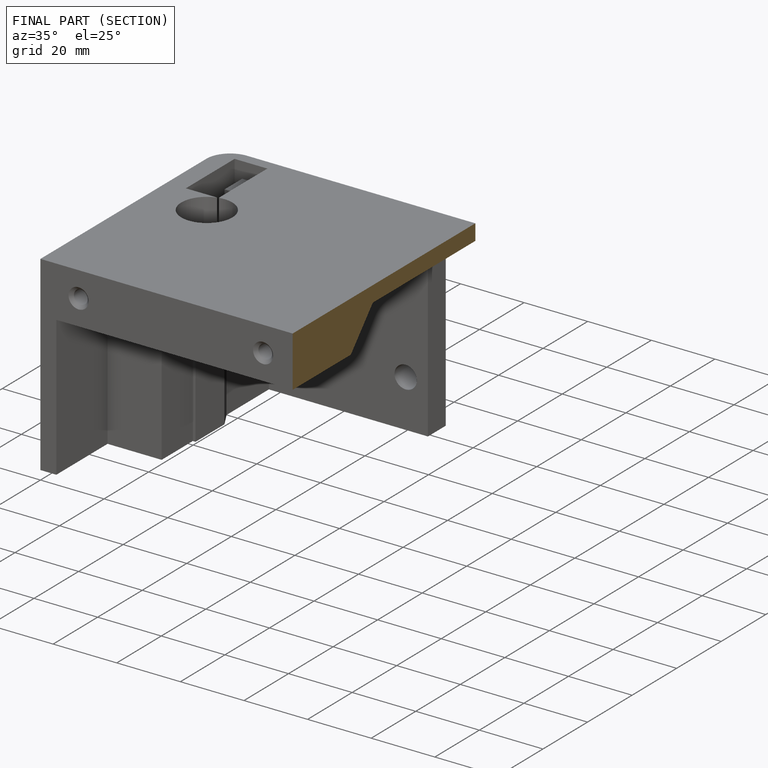
[diagram: finished part — half-section view (interior)]
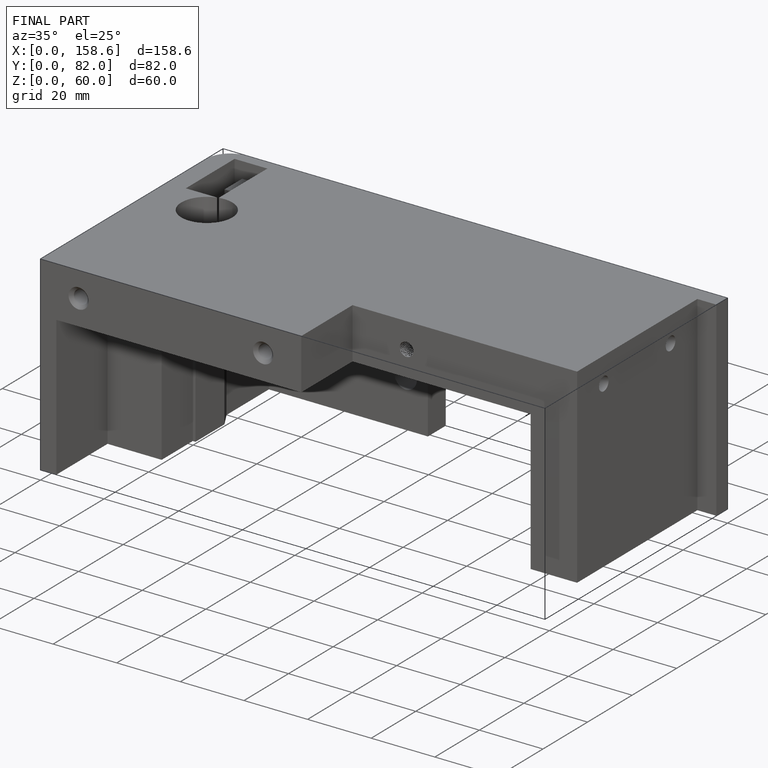
[diagram: finished part — iso view with bounding-box wireframe]
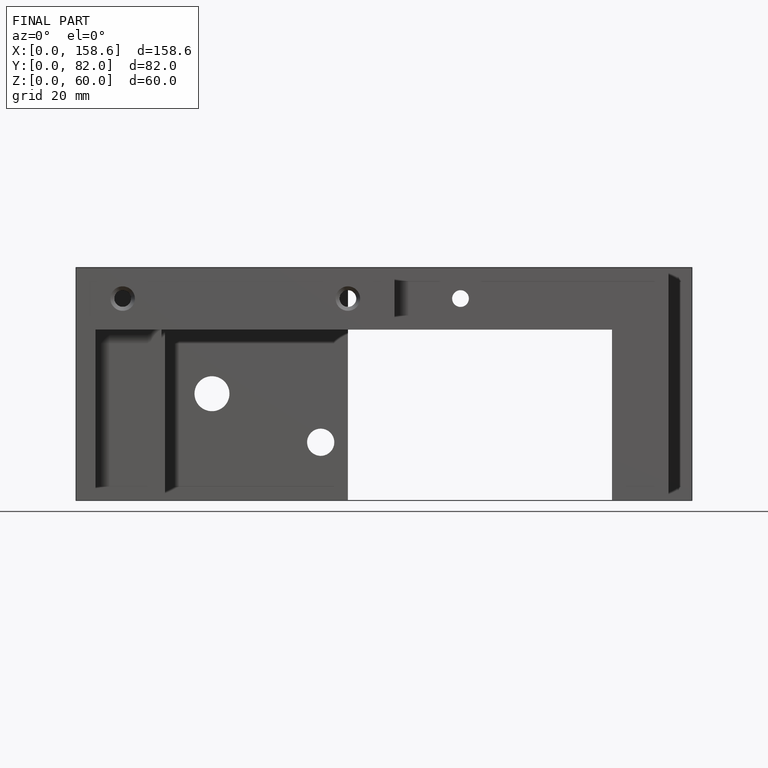
[diagram: finished part — front view with bounding-box wireframe]
